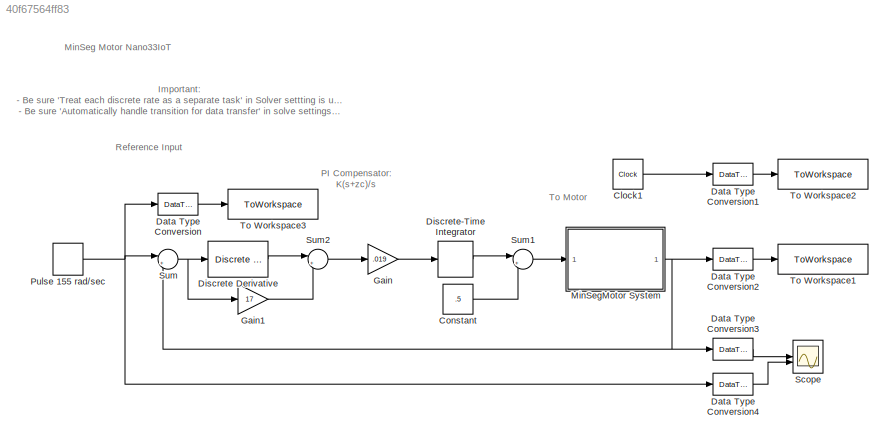
MODEL slx_40f67564ff83
KIND model
CONFIG AbsTol = auto
CONFIG EnableMultiTasking = on
CONFIG FixedStep = auto
CONFIG MaxStep = auto
CONFIG MinStep = auto
CONFIG RelTol = 1e-3
CONFIG SampleTimeConstraint = Unconstrained
CONFIG SolverName = ode45
CONFIG StartTime = 0.0
CONFIG StopTime = 10.0
BLOCK [Clock] Clock1
BLOCK [Constant] Constant
  Value = .5
BLOCK [DataTypeConversion] Data Type Conversion
  OutDataTypeStr = single
  RndMeth = Floor
  SaturateOnIntegerOverflow = off
BLOCK [DataTypeConversion] Data Type Conversion1
  OutDataTypeStr = single
  RndMeth = Floor
  SaturateOnIntegerOverflow = off
BLOCK [DataTypeConversion] Data Type Conversion2
  OutDataTypeStr = single
  RndMeth = Floor
  SaturateOnIntegerOverflow = off
BLOCK [DataTypeConversion] Data Type Conversion3
  OutDataTypeStr = single
  RndMeth = Floor
  SaturateOnIntegerOverflow = off
BLOCK [DataTypeConversion] Data Type Conversion4
  OutDataTypeStr = single
  RndMeth = Floor
  SaturateOnIntegerOverflow = off
BLOCK [Reference] Discrete Derivative  REF=simulink/Discrete/Discrete Derivative
  SourceBlock = simulink/Discrete/Discrete Derivative
  SourceType = Discrete Derivative
BLOCK [DiscreteIntegrator] Discrete-Time Integrator
  ICPrevOutput = DiscIntNeverNeededParam
  ICPrevScaledInput = DiscIntNeverNeededParam
  InitialConditionSetting = Auto
  SampleTime = -1
BLOCK [Gain] Gain
  Gain = .019
BLOCK [Gain] Gain1
  Gain = 17
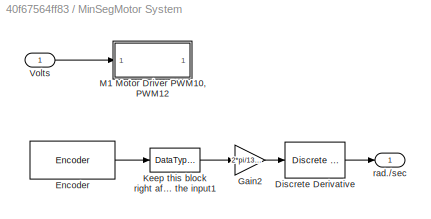
BLOCK [SubSystem] MinSegMotor System
BLOCK [Reference] MinSegMotor System/Discrete Derivative  REF=simulink/Discrete/Discrete Derivative
  SourceBlock = simulink/Discrete/Discrete Derivative
  SourceType = Discrete Derivative
BLOCK [Reference] MinSegMotor System/Encoder  REF=arduinosensorlib/Encoder
  SourceBlock = arduinosensorlib/Encoder
  SourceType = Arduino Rotary Encoder
BLOCK [Gain] MinSegMotor System/Gain2
  Gain = 2*pi/1336
BLOCK [DataTypeConversion] MinSegMotor System/Keep this block right after the input1
  OutDataTypeStr = double
  RndMeth = Floor
  SaturateOnIntegerOverflow = off
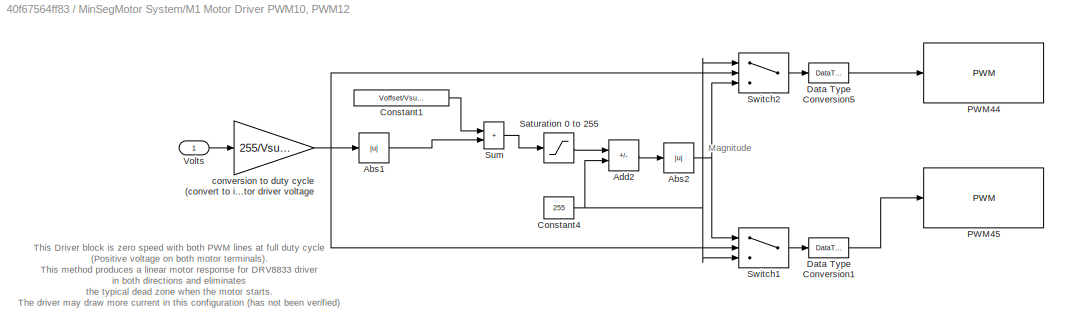
BLOCK [SubSystem] MinSegMotor System/M1 Motor Driver PWM10, PWM12
BLOCK [Abs] MinSegMotor System/M1 Motor Driver PWM10, PWM12/Abs1
  SaturateOnIntegerOverflow = off
BLOCK [Abs] MinSegMotor System/M1 Motor Driver PWM10, PWM12/Abs2
  SaturateOnIntegerOverflow = off
BLOCK [Sum] MinSegMotor System/M1 Motor Driver PWM10, PWM12/Add2
  IconShape = rectangular
  Inputs = -+
BLOCK [Constant] MinSegMotor System/M1 Motor Driver PWM10, PWM12/Constant1
  Value = Voffset/Vsupply*255
BLOCK [Constant] MinSegMotor System/M1 Motor Driver PWM10, PWM12/Constant4
  Value = 255
BLOCK [DataTypeConversion] MinSegMotor System/M1 Motor Driver PWM10, PWM12/Data Type Conversion1
  OutDataTypeStr = uint8
  RndMeth = Floor
  SaturateOnIntegerOverflow = off
BLOCK [DataTypeConversion] MinSegMotor System/M1 Motor Driver PWM10, PWM12/Data Type Conversion5
  OutDataTypeStr = uint8
  RndMeth = Floor
  SaturateOnIntegerOverflow = off
BLOCK [Reference] MinSegMotor System/M1 Motor Driver PWM10, PWM12/PWM44  REF=arduinolib/PWM
  SourceBlock = arduinolib/PWM
  SourceType = Arduino PWM
BLOCK [Reference] MinSegMotor System/M1 Motor Driver PWM10, PWM12/PWM45  REF=arduinolib/PWM
  SourceBlock = arduinolib/PWM
  SourceType = Arduino PWM
BLOCK [Saturate] MinSegMotor System/M1 Motor Driver PWM10, PWM12/Saturation 0 to 255
  LowerLimit = 0
  UpperLimit = 255
BLOCK [Sum] MinSegMotor System/M1 Motor Driver PWM10, PWM12/Sum
  IconShape = rectangular
BLOCK [Switch] MinSegMotor System/M1 Motor Driver PWM10, PWM12/Switch1
  InputSameDT = off
  SaturateOnIntegerOverflow = off
BLOCK [Switch] MinSegMotor System/M1 Motor Driver PWM10, PWM12/Switch2
  InputSameDT = off
  SaturateOnIntegerOverflow = off
BLOCK [Inport] MinSegMotor System/M1 Motor Driver PWM10, PWM12/Volts
BLOCK [Gain] MinSegMotor System/M1 Motor Driver PWM10, PWM12/conversion to duty cycle (convert to int) denominator is motor driver voltage
  Gain = 255/Vsupply
  OutDataTypeStr = int16
BLOCK [Inport] MinSegMotor System/Volts
BLOCK [Outport] MinSegMotor System/rad.//sec
BLOCK [DiscretePulseGenerator] Pulse 155 rad//sec
  Amplitude = 155
  Period = 4
  PulseType = Time based
  PulseWidth = 50
BLOCK [Scope] Scope
  ActiveDisplayYMaximum = 182.68149646388963
  ActiveDisplayYMinimum = -21.604328222194336
  DataLoggingDecimation = 10
  Floating = off
  GraphicalSettings = {"Style":{"BackgroundColor":[0.12941176470588237,0.12941176470588237,0.12941176470588237],"AxesColor":[0.07058823529411765,0.07058823529411765,0.07058823529411765],"LabelsColor":[0.8509803921568627,0.8509803921568627,0.8509803921568627],"PreserveColors":false,"Visible":[true,true],"LineStyle":["-","-"],"LineWidth":[1.5,1.5],"BarWidth":[0.9,0.9],"LineColor":["auto","auto"],"LineFaceAlpha":[1,1],"Li...<+2172ch>
  MultipleDisplayCache = [{"MaxYLimMag":182.68149646388963,"MaxYLimReal":182.68149646388963,"MinYLimMag":0,"MinYLimReal":-21.604328222194336,"PlotAsMagnitudePhase":false,"ShowGrid":true,"ShowLegend":false,"Title":"%<SignalLabel>","YLabel":""}]
  NumInputPorts = 2
  ScopeFrameLocation = window
  TimeSpanOverrunAction = Scroll
  WasSavedAsWebScope = on
  WindowPosition = [1374.000000,462.000000,612.000000,842.000000,]
BLOCK [Sum] Sum
  Inputs = |+-
BLOCK [Sum] Sum1
  Inputs = |++
BLOCK [Sum] Sum2
  Inputs = |++
BLOCK [ToWorkspace] To Workspace1
  FixptAsFi = on
  MaxDataPoints = inf
  SampleTime = -1
  Save2DSignal = 2-D array (concatenate along first dimension)
  VariableName = W
BLOCK [ToWorkspace] To Workspace2
  FixptAsFi = on
  MaxDataPoints = inf
  SampleTime = -1
  Save2DSignal = 2-D array (concatenate along first dimension)
  VariableName = t
BLOCK [ToWorkspace] To Workspace3
  FixptAsFi = on
  MaxDataPoints = inf
  SampleTime = -1
  Save2DSignal = 2-D array (concatenate along first dimension)
  VariableName = R
ANNOTATION (root): Important: - Be sure 'Treat each discrete rate as a separate task' in Solver settting is unchecked - Be sure 'Automatically handle transition for data transfer' in solve settings is unchecked
ANNOTATION (root): PI Compensator: K(s+zc)/s
ANNOTATION (root): Reference Input
ANNOTATION (root): To Motor
ANNOTATION (root): MinSeg Motor Nano33IoT
ANNOTATION MinSegMotor System/M1 Motor Driver PWM10, PWM12: Magnitude
ANNOTATION MinSegMotor System/M1 Motor Driver PWM10, PWM12: This Driver block is zero speed with both PWM lines at full duty cycle (Positive voltage on both motor terminals). This method produces a linear motor response for DRV8833 driver in both directions and eliminates the typical dead zone when the motor starts. The driver may draw more current in this configuration (has not been verified) The SN754410 driver this has no effect, so the driver could alt...<+76ch>
LINE Clock1:1 -> Data Type Conversion1:1
LINE Constant:1 -> Sum1:2
LINE Data Type Conversion1:1 -> To Workspace2:1
LINE Data Type Conversion2:1 -> To Workspace1:1
LINE Data Type Conversion3:1 -> Scope:1
LINE Data Type Conversion4:1 -> Scope:2
LINE Data Type Conversion:1 -> To Workspace3:1
LINE Discrete Derivative:1 -> Sum2:1
LINE Discrete-Time Integrator:1 -> Sum1:1
LINE Gain1:1 -> Sum2:2
LINE Gain:1 -> Discrete-Time Integrator:1
LINE MinSegMotor System/Discrete Derivative:1 -> MinSegMotor System/rad.//sec:1
LINE MinSegMotor System/Encoder:1 -> MinSegMotor System/Keep this block right after the input1:1
LINE MinSegMotor System/Gain2:1 -> MinSegMotor System/Discrete Derivative:1
LINE MinSegMotor System/Keep this block right after the input1:1 -> MinSegMotor System/Gain2:1
LINE MinSegMotor System/M1 Motor Driver PWM10, PWM12/Abs1:1 -> MinSegMotor System/M1 Motor Driver PWM10, PWM12/Sum:2
NET MinSegMotor System/M1 Motor Driver PWM10, PWM12/Abs2:1 -> MinSegMotor System/M1 Motor Driver PWM10, PWM12/Switch1:1, MinSegMotor System/M1 Motor Driver PWM10, PWM12/Switch2:3
LINE MinSegMotor System/M1 Motor Driver PWM10, PWM12/Add2:1 -> MinSegMotor System/M1 Motor Driver PWM10, PWM12/Abs2:1
LINE MinSegMotor System/M1 Motor Driver PWM10, PWM12/Constant1:1 -> MinSegMotor System/M1 Motor Driver PWM10, PWM12/Sum:1
NET MinSegMotor System/M1 Motor Driver PWM10, PWM12/Constant4:1 -> MinSegMotor System/M1 Motor Driver PWM10, PWM12/Add2:2, MinSegMotor System/M1 Motor Driver PWM10, PWM12/Switch1:3, MinSegMotor System/M1 Motor Driver PWM10, PWM12/Switch2:1
LINE MinSegMotor System/M1 Motor Driver PWM10, PWM12/Data Type Conversion1:1 -> MinSegMotor System/M1 Motor Driver PWM10, PWM12/PWM45:1
LINE MinSegMotor System/M1 Motor Driver PWM10, PWM12/Data Type Conversion5:1 -> MinSegMotor System/M1 Motor Driver PWM10, PWM12/PWM44:1
LINE MinSegMotor System/M1 Motor Driver PWM10, PWM12/Saturation 0 to 255:1 -> MinSegMotor System/M1 Motor Driver PWM10, PWM12/Add2:1
LINE MinSegMotor System/M1 Motor Driver PWM10, PWM12/Sum:1 -> MinSegMotor System/M1 Motor Driver PWM10, PWM12/Saturation 0 to 255:1
LINE MinSegMotor System/M1 Motor Driver PWM10, PWM12/Switch1:1 -> MinSegMotor System/M1 Motor Driver PWM10, PWM12/Data Type Conversion1:1
LINE MinSegMotor System/M1 Motor Driver PWM10, PWM12/Switch2:1 -> MinSegMotor System/M1 Motor Driver PWM10, PWM12/Data Type Conversion5:1
LINE MinSegMotor System/M1 Motor Driver PWM10, PWM12/Volts:1 -> MinSegMotor System/M1 Motor Driver PWM10, PWM12/conversion to duty cycle (convert to int) denominator is motor driver voltage:1
NET MinSegMotor System/M1 Motor Driver PWM10, PWM12/conversion to duty cycle (convert to int) denominator is motor driver voltage:1 -> MinSegMotor System/M1 Motor Driver PWM10, PWM12/Abs1:1, MinSegMotor System/M1 Motor Driver PWM10, PWM12/Switch1:2, MinSegMotor System/M1 Motor Driver PWM10, PWM12/Switch2:2
LINE MinSegMotor System/Volts:1 -> MinSegMotor System/M1 Motor Driver PWM10, PWM12:1
NET MinSegMotor System:1 -> Data Type Conversion2:1, Data Type Conversion3:1, Sum:2
NET Pulse 155 rad//sec:1 -> Data Type Conversion4:1, Data Type Conversion:1, Sum:1
LINE Sum1:1 -> MinSegMotor System:1
LINE Sum2:1 -> Gain:1
NET Sum:1 -> Discrete Derivative:1, Gain1:1
note: NET lines group one-source signal fan-out (src -> all destinations, sorted); 1:1 wires keep LINE
